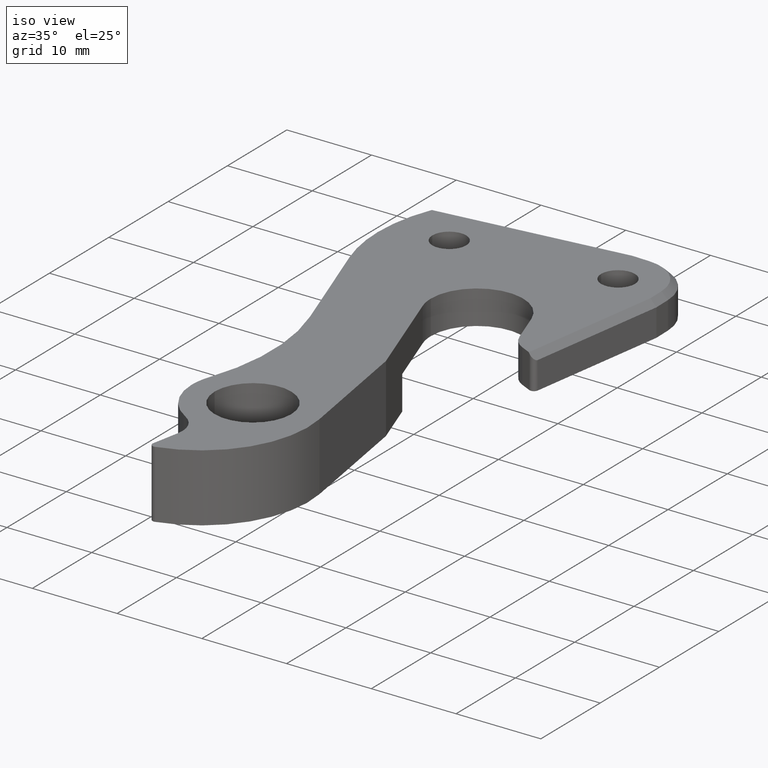
[diagram: clean part render]
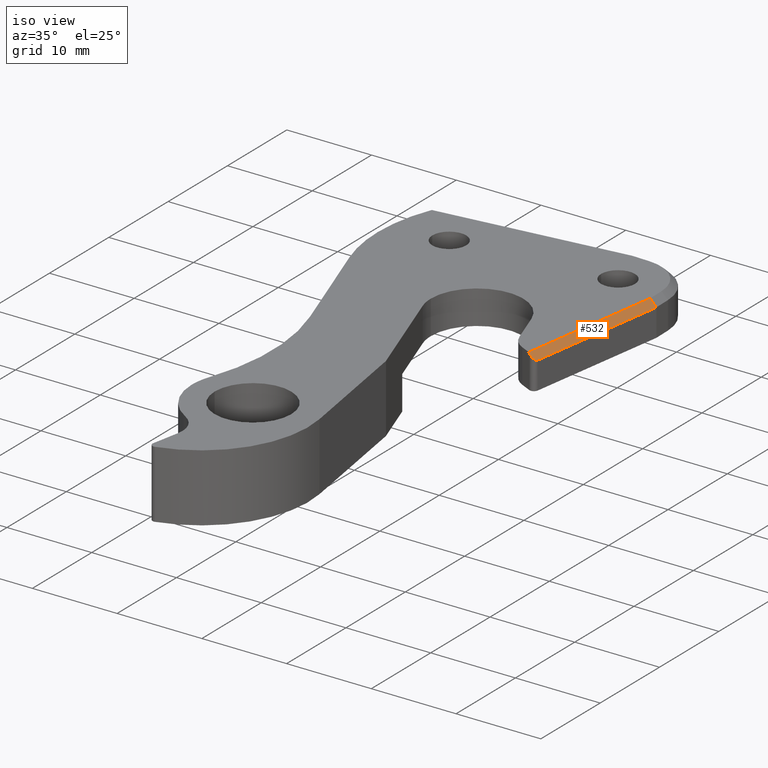
[diagram: same view with one face highlighted and labeled with its STEP entity id]
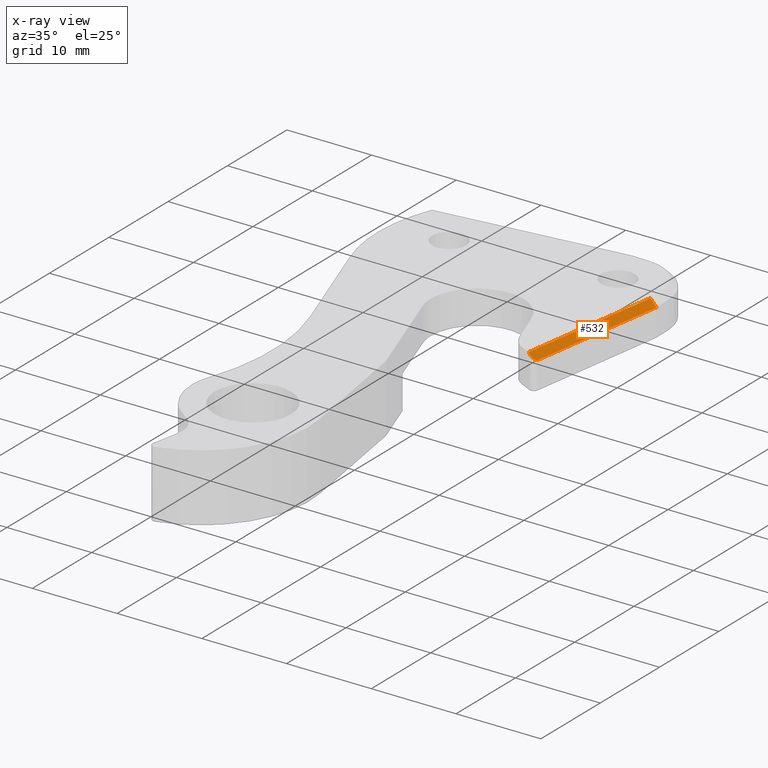
[diagram: x-ray of the same camera — body ghosted, the highlighted face saturated]
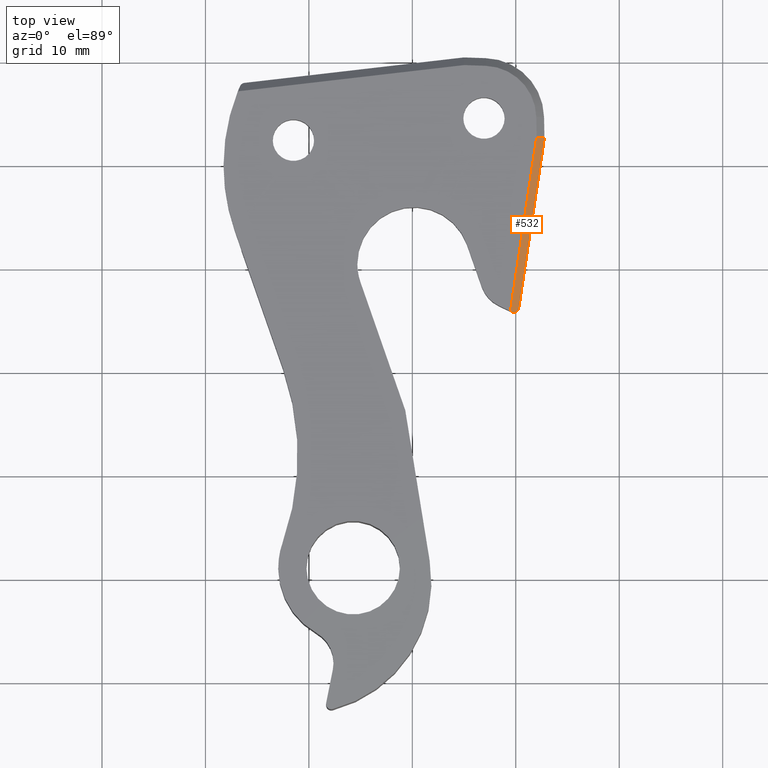
[diagram: same view with one face highlighted and labeled with its STEP entity id]
A machine part, iso view. The second image highlights one B-rep face of the part: STEP entity #532.
The next image is the same camera in x-ray: the body ghosted, the highlighted face saturated — about 0% of this face is hidden behind the body in this view.
A second angle (top view) of the same face is appended — the face is thin or edge-on in the first view.
In plain terms, the highlighted planar face has unit normal (0.6992, -0.1055, 0.7071).
Its self-contained STEP definition (entity closure, byte-faithful):
#12 = VERTEX_POINT ( 'NONE', #111 ) ;
#40 = CARTESIAN_POINT ( 'NONE',  ( 60.29025070389847230, -13.80084832302312670, 7.249999999999722000 ) ) ;
#47 = VERTEX_POINT ( 'NONE', #562 ) ;
#49 = EDGE_CURVE ( 'NONE', #47, #415, #1112, .T. ) ;
#89 = CARTESIAN_POINT ( 'NONE',  ( 62.02035325021798684, 2.695675767671724454, 7.999999999999401368 ) ) ;
#90 = CARTESIAN_POINT ( 'NONE',  ( 59.56462029106904055, -14.18424020737975866, 7.910322385307545723 ) ) ;
#107 = CARTESIAN_POINT ( 'NONE',  ( 60.29025070389847230, -13.80084832302312670, 7.249999999999722000 ) ) ;
#111 = CARTESIAN_POINT ( 'NONE',  ( 62.77145180000040625, 2.646705399999983666, 7.249999999999722000 ) ) ;
#121 = LINE ( 'NONE', #40, #925 ) ;
#122 = VERTEX_POINT ( 'NONE', #1009 ) ;
#164 = FACE_OUTER_BOUND ( 'NONE', #329, .T. ) ;
#183 = ORIENTED_EDGE ( 'NONE', *, *, #1189, .F. ) ;
#221 = ORIENTED_EDGE ( 'NONE', *, *, #668, .F. ) ;
#241 = LINE ( 'NONE', #575, #768 ) ;
#300 = DIRECTION ( 'NONE',  ( 0.1491675478382895048, 0.9888119349360179333, 0.0000000000000000000 ) ) ;
#329 = EDGE_LOOP ( 'NONE', ( #1078, #785, #221, #1306, #183 ) ) ;
#348 = DIRECTION ( 'NONE',  ( 0.7068721775506091598, -0.04608688226279852168, -0.7058383128508646243 ) ) ;
#368 = EDGE_CURVE ( 'NONE', #12, #122, #121, .T. ) ;
#415 = VERTEX_POINT ( 'NONE', #89 ) ;
#461 = CARTESIAN_POINT ( 'NONE',  ( 62.04104448341260536, 2.694326733916660555, 7.979339029610900802 ) ) ;
#532 = ADVANCED_FACE ( 'NONE', ( #164 ), #1181, .T. ) ;
#553 = VECTOR ( 'NONE', #348, 1000.000000000000114 ) ;
#558 = AXIS2_PLACEMENT_3D ( 'NONE', #1341, #669, #1282 ) ;
#562 = CARTESIAN_POINT ( 'NONE',  ( 59.48007216750249171, -14.14351136842520695, 7.999999999999401368 ) ) ;
#575 = CARTESIAN_POINT ( 'NONE',  ( 57.04845508757735928, -12.97214367544405889, 10.57914203620249793 ) ) ;
#668 = EDGE_CURVE ( 'NONE', #415, #12, #838, .T. ) ;
#669 = DIRECTION ( 'NONE',  ( 0.6991956245114699930, -0.1054773846094263223, 0.7071067811865267005 ) ) ;
#766 = EDGE_CURVE ( 'NONE', #122, #945, #1356, .T. ) ;
#768 = VECTOR ( 'NONE', #1194, 1000.000000000000000 ) ;
#785 = ORIENTED_EDGE ( 'NONE', *, *, #368, .F. ) ;
#838 = LINE ( 'NONE', #461, #553 ) ;
#844 = CARTESIAN_POINT ( 'NONE',  ( 62.02984284879870103, 2.758581060878706026, 7.999999999999401368 ) ) ;
#925 = VECTOR ( 'NONE', #1033, 1000.000000000000000 ) ;
#935 = CARTESIAN_POINT ( 'NONE',  ( 60.23429097335340288, -14.17179797152911824, 7.249999999999652722 ) ) ;
#945 = VERTEX_POINT ( 'NONE', #90 ) ;
#1009 = CARTESIAN_POINT ( 'NONE',  ( 60.29025070389847230, -13.80084832302312670, 7.249999999999722000 ) ) ;
#1033 = DIRECTION ( 'NONE',  ( -0.1491675478382895048, -0.9888119349360179333, 0.0000000000000000000 ) ) ;
#1078 = ORIENTED_EDGE ( 'NONE', *, *, #766, .F. ) ;
#1087 = CARTESIAN_POINT ( 'NONE',  ( 59.90259618730024016, -14.34705122278179701, 7.551841665464992914 ) ) ;
#1112 = LINE ( 'NONE', #844, #1330 ) ;
#1181 = PLANE ( 'NONE',  #558 ) ;
#1189 = EDGE_CURVE ( 'NONE', #945, #47, #241, .T. ) ;
#1194 = DIRECTION ( 'NONE',  ( -0.6513479738151349840, 0.3137697870748516471, 0.6908649200284527891 ) ) ;
#1255 = CARTESIAN_POINT ( 'NONE',  ( 59.56462029106904055, -14.18424020737975866, 7.910322385307545723 ) ) ;
#1282 = DIRECTION ( 'NONE',  ( -0.1491675478382894771, -0.9888119349360178223, 0.0000000000000000000 ) ) ;
#1306 = ORIENTED_EDGE ( 'NONE', *, *, #49, .F. ) ;
#1330 = VECTOR ( 'NONE', #300, 1000.000000000000000 ) ;
#1341 = CARTESIAN_POINT ( 'NONE',  ( 62.09328260671961885, 3.179114821011956415, 7.999999999999401368 ) ) ;
#1356 =( BOUNDED_CURVE ( )  B_SPLINE_CURVE ( 3, ( #107, #935, #1087, #1255 ),
 .UNSPECIFIED., .F., .F. ) 
 B_SPLINE_CURVE_WITH_KNOTS ( ( 4, 4 ),
 ( -8.881784197001252323E-16, 1.869989976816501365 ),
 .UNSPECIFIED. ) 
 CURVE ( )  GEOMETRIC_REPRESENTATION_ITEM ( )  RATIONAL_B_SPLINE_CURVE ( ( 1.000000000000000000, 0.7292149724591384663, 0.7292149724591384663, 1.000000000000000000 ) ) 
 REPRESENTATION_ITEM ( '' )  );